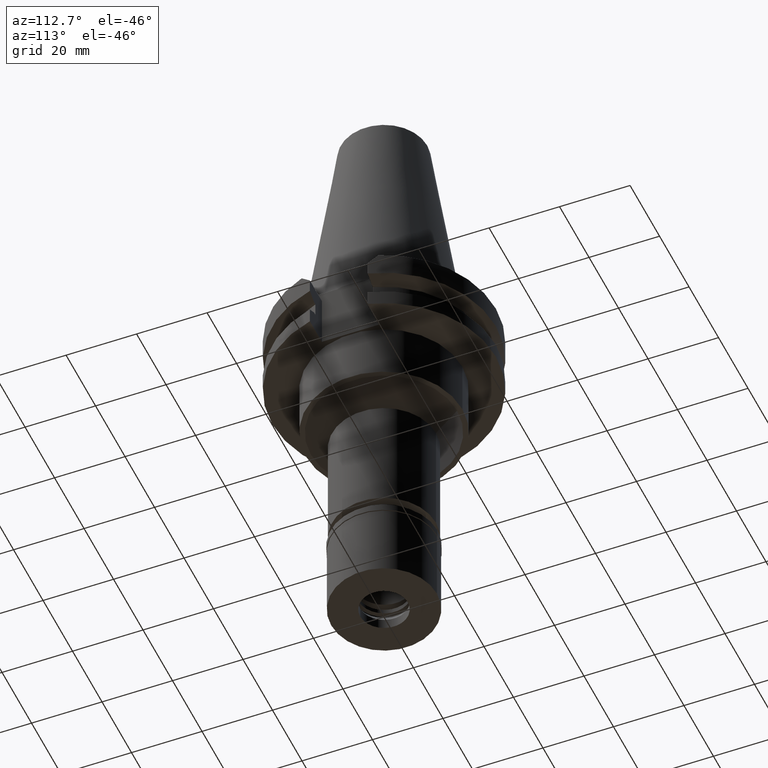
[diagram: clean part render]
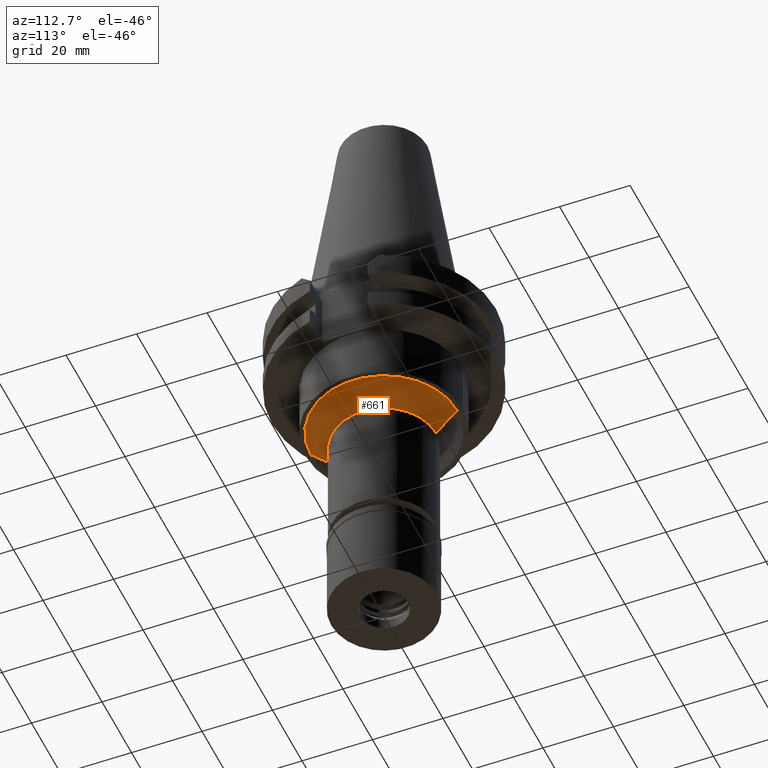
[diagram: same view with one face highlighted and labeled with its STEP entity id]
A machine part, auxiliary view. The second image highlights one B-rep face of the part: STEP entity #661.
In plain terms, the highlighted conical surface has half-angle 45 deg.
Its self-contained STEP definition (entity closure, byte-faithful):
#9 = CARTESIAN_POINT ( 'NONE',  ( 0.0000000000000000000, 20.75000000000000000, -35.00000000000000000 ) ) ;
#176 = EDGE_LOOP ( 'NONE', ( #309, #1140, #2089, #2538 ) ) ;
#178 = CARTESIAN_POINT ( 'NONE',  ( 0.0000000000000000000, -20.75000000000000000, -35.00000000000000000 ) ) ;
#241 = VERTEX_POINT ( 'NONE', #2876 ) ;
#309 = ORIENTED_EDGE ( 'NONE', *, *, #2514, .T. ) ;
#441 = DIRECTION ( 'NONE',  ( 0.0000000000000000000, 1.000000000000000000, 0.0000000000000000000 ) ) ;
#661 = ADVANCED_FACE ( 'NONE', ( #668 ), #1894, .T. ) ;
#668 = FACE_OUTER_BOUND ( 'NONE', #176, .T. ) ;
#677 = EDGE_CURVE ( 'NONE', #2555, #241, #3291, .T. ) ;
#934 = DIRECTION ( 'NONE',  ( 0.0000000000000000000, 0.0000000000000000000, 1.000000000000000000 ) ) ;
#978 = DIRECTION ( 'NONE',  ( 0.0000000000000000000, 0.7071067811865474617, -0.7071067811865474617 ) ) ;
#1095 = CIRCLE ( 'NONE', #2973, 14.75000000000000000 ) ;
#1140 = ORIENTED_EDGE ( 'NONE', *, *, #677, .T. ) ;
#1420 = EDGE_CURVE ( 'NONE', #2459, #241, #1095, .T. ) ;
#1425 = CARTESIAN_POINT ( 'NONE',  ( 0.0000000000000000000, 0.0000000000000000000, -35.00000000000000000 ) ) ;
#1567 = VECTOR ( 'NONE', #978, 1000.000000000000114 ) ;
#1697 = DIRECTION ( 'NONE',  ( 0.0000000000000000000, 0.0000000000000000000, -1.000000000000000000 ) ) ;
#1793 = DIRECTION ( 'NONE',  ( 0.0000000000000000000, 1.000000000000000000, 0.0000000000000000000 ) ) ;
#1819 = EDGE_CURVE ( 'NONE', #2356, #2459, #3060, .T. ) ;
#1836 = AXIS2_PLACEMENT_3D ( 'NONE', #1425, #1697, #1949 ) ;
#1894 = CONICAL_SURFACE ( 'NONE', #2588, 17.75000000000000000, 0.7853981633972997312 ) ;
#1949 = DIRECTION ( 'NONE',  ( 0.0000000000000000000, 1.000000000000000000, 0.0000000000000000000 ) ) ;
#2083 = DIRECTION ( 'NONE',  ( 0.0000000000000000000, -0.7071067811865474617, -0.7071067811865474617 ) ) ;
#2089 = ORIENTED_EDGE ( 'NONE', *, *, #1420, .F. ) ;
#2138 = CARTESIAN_POINT ( 'NONE',  ( 0.0000000000000000000, 20.75000000000000000, -35.00000000000000000 ) ) ;
#2154 = CIRCLE ( 'NONE', #1836, 20.75000000000000000 ) ;
#2269 = CARTESIAN_POINT ( 'NONE',  ( 0.0000000000000000000, 0.0000000000000000000, -41.00000000000000000 ) ) ;
#2356 = VERTEX_POINT ( 'NONE', #2138 ) ;
#2388 = VECTOR ( 'NONE', #2083, 1000.000000000000114 ) ;
#2459 = VERTEX_POINT ( 'NONE', #3214 ) ;
#2514 = EDGE_CURVE ( 'NONE', #2356, #2555, #2154, .T. ) ;
#2519 = CARTESIAN_POINT ( 'NONE',  ( 0.0000000000000000000, -20.75000000000000000, -35.00000000000000000 ) ) ;
#2538 = ORIENTED_EDGE ( 'NONE', *, *, #1819, .F. ) ;
#2555 = VERTEX_POINT ( 'NONE', #2519 ) ;
#2588 = AXIS2_PLACEMENT_3D ( 'NONE', #3002, #934, #441 ) ;
#2876 = CARTESIAN_POINT ( 'NONE',  ( 0.0000000000000000000, -14.75000000000000000, -41.00000000000000000 ) ) ;
#2973 = AXIS2_PLACEMENT_3D ( 'NONE', #2269, #3064, #1793 ) ;
#3002 = CARTESIAN_POINT ( 'NONE',  ( 0.0000000000000000000, 0.0000000000000000000, -38.00000000000000000 ) ) ;
#3060 = LINE ( 'NONE', #9, #2388 ) ;
#3064 = DIRECTION ( 'NONE',  ( 0.0000000000000000000, 0.0000000000000000000, -1.000000000000000000 ) ) ;
#3214 = CARTESIAN_POINT ( 'NONE',  ( 0.0000000000000000000, 14.75000000000000000, -41.00000000000000000 ) ) ;
#3291 = LINE ( 'NONE', #178, #1567 ) ;